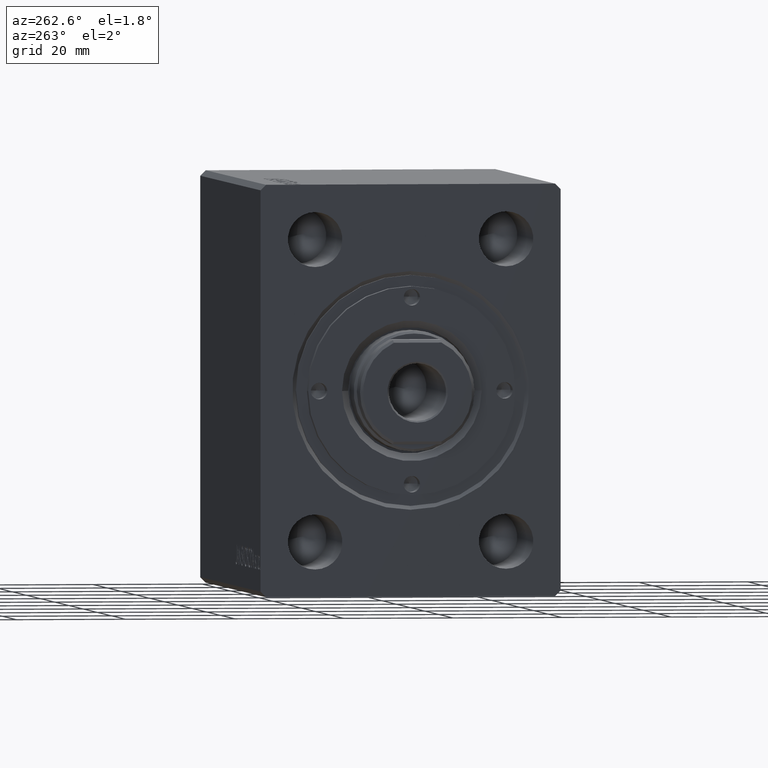
[diagram: clean part render]
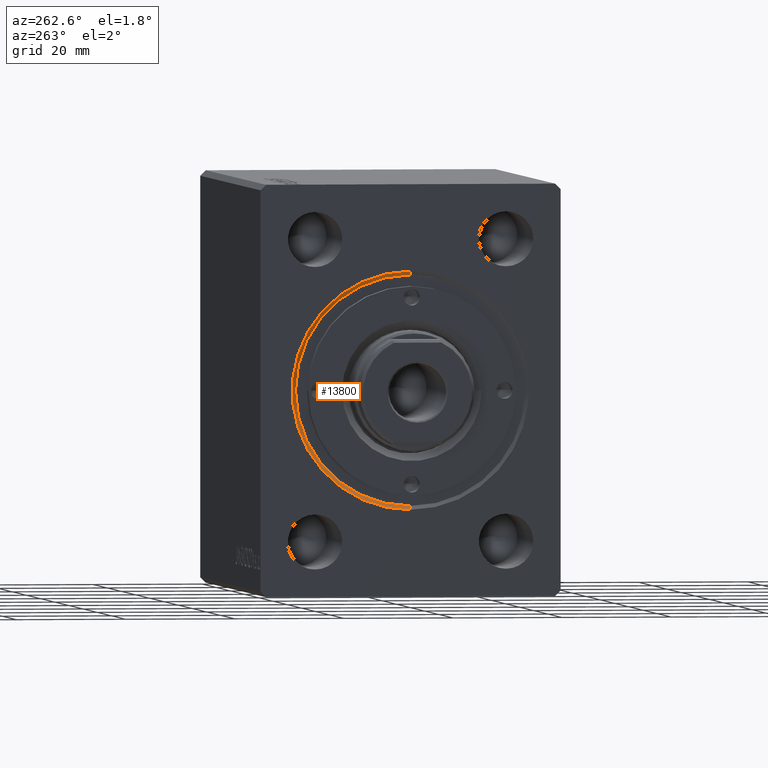
[diagram: same view with one face highlighted and labeled with its STEP entity id]
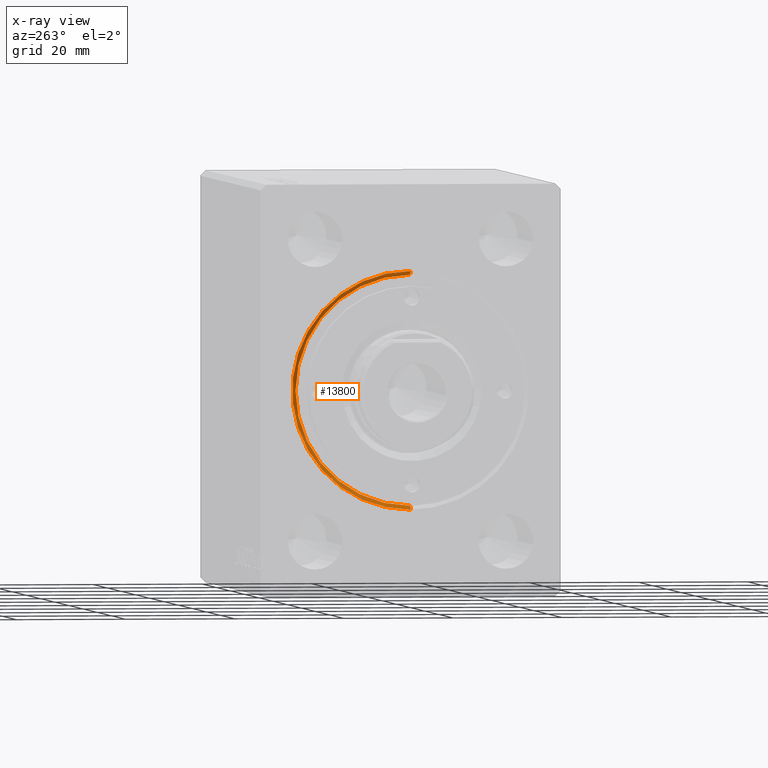
[diagram: x-ray of the same camera — body ghosted, the highlighted face saturated]
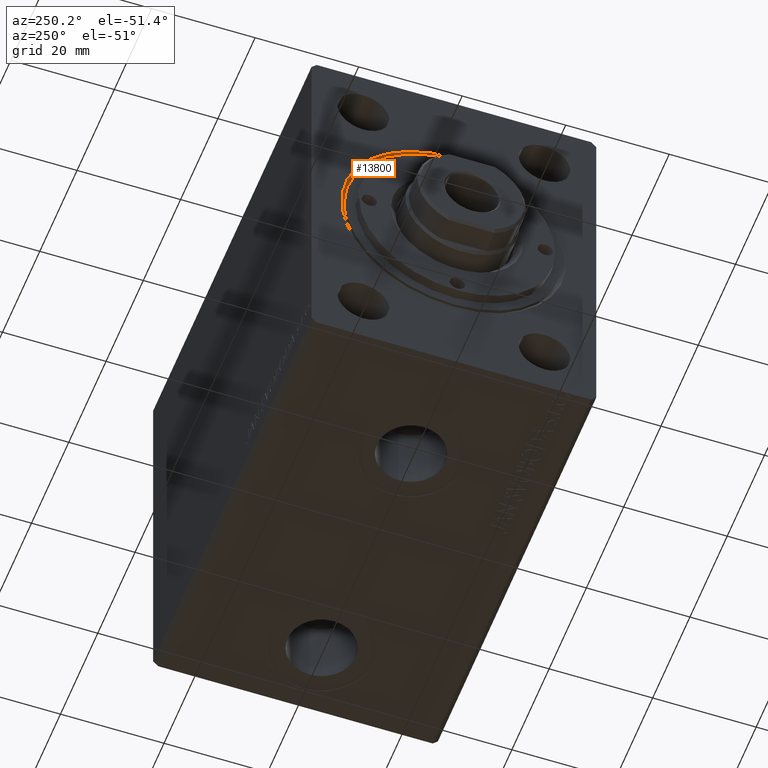
[diagram: same view with one face highlighted and labeled with its STEP entity id]
A machine part, auxiliary view. The second image highlights one B-rep face of the part: STEP entity #13800.
The next image is the same camera in x-ray: the body ghosted, the highlighted face saturated — about 0% of this face is hidden behind the body in this view.
A second angle (auxiliary view) of the same face is appended — the face is thin or edge-on in the first view.
In plain terms, the highlighted conical surface has half-angle 45 deg.
Its self-contained STEP definition (entity closure, byte-faithful):
#295 = VERTEX_POINT ( 'NONE', #17125 ) ;
#427 = ORIENTED_EDGE ( 'NONE', *, *, #30086, .F. ) ;
#2052 = FACE_OUTER_BOUND ( 'NONE', #20793, .T. ) ;
#2670 = DIRECTION ( 'NONE',  ( -0.7071067811865441310, 8.659560562354975999E-17, -0.7071067811865510144 ) ) ;
#2992 = CARTESIAN_POINT ( 'NONE',  ( 0.6999999999999888534, 0.000000000000000000, 21.00000000000000000 ) ) ;
#3009 = VERTEX_POINT ( 'NONE', #31780 ) ;
#3870 = AXIS2_PLACEMENT_3D ( 'NONE', #24451, #38091, #20230 ) ;
#5454 = EDGE_CURVE ( 'NONE', #41879, #3009, #20027, .T. ) ;
#5884 = CONICAL_SURFACE ( 'NONE', #30144, 21.00000000000000000, 0.7853981633974532750 ) ;
#9567 = CIRCLE ( 'NONE', #3870, 21.69999999999999574 ) ;
#12453 = CARTESIAN_POINT ( 'NONE',  ( 0.6999999999999888534, 2.571758278209441661E-15, -21.00000000000000000 ) ) ;
#13800 = ADVANCED_FACE ( 'NONE', ( #2052 ), #5884, .F. ) ;
#14729 = ORIENTED_EDGE ( 'NONE', *, *, #36309, .F. ) ;
#16098 = DIRECTION ( 'NONE',  ( -1.000000000000000000, 0.000000000000000000, 0.000000000000000000 ) ) ;
#17125 = CARTESIAN_POINT ( 'NONE',  ( 0.000000000000000000, 2.657483554149755949E-15, -21.69999999999999574 ) ) ;
#20027 = CIRCLE ( 'NONE', #20737, 21.00000000000000000 ) ;
#20230 = DIRECTION ( 'NONE',  ( 0.000000000000000000, 0.000000000000000000, -1.000000000000000000 ) ) ;
#20737 = AXIS2_PLACEMENT_3D ( 'NONE', #23474, #16098, #29297 ) ;
#20793 = EDGE_LOOP ( 'NONE', ( #427, #26949, #27473, #14729 ) ) ;
#22187 = CARTESIAN_POINT ( 'NONE',  ( 0.000000000000000000, 0.000000000000000000, 21.69999999999999574 ) ) ;
#23474 = CARTESIAN_POINT ( 'NONE',  ( 0.6999999999999888534, 0.000000000000000000, 0.000000000000000000 ) ) ;
#24451 = CARTESIAN_POINT ( 'NONE',  ( 0.000000000000000000, 0.000000000000000000, 0.000000000000000000 ) ) ;
#25929 = DIRECTION ( 'NONE',  ( 0.000000000000000000, 0.000000000000000000, 1.000000000000000000 ) ) ;
#26949 = ORIENTED_EDGE ( 'NONE', *, *, #5454, .F. ) ;
#27473 = ORIENTED_EDGE ( 'NONE', *, *, #28483, .T. ) ;
#28483 = EDGE_CURVE ( 'NONE', #41879, #34901, #40272, .T. ) ;
#29068 = DIRECTION ( 'NONE',  ( -1.000000000000000000, 0.000000000000000000, 0.000000000000000000 ) ) ;
#29297 = DIRECTION ( 'NONE',  ( 0.000000000000000000, 0.000000000000000000, -1.000000000000000000 ) ) ;
#30086 = EDGE_CURVE ( 'NONE', #3009, #295, #43060, .T. ) ;
#30144 = AXIS2_PLACEMENT_3D ( 'NONE', #39776, #29068, #25929 ) ;
#31780 = CARTESIAN_POINT ( 'NONE',  ( 0.6999999999999888534, 2.571758278209441661E-15, -21.00000000000000000 ) ) ;
#34010 = DIRECTION ( 'NONE',  ( -0.7071067811865441310, 0.000000000000000000, 0.7071067811865510144 ) ) ;
#34794 = VECTOR ( 'NONE', #2670, 999.9999999999998863 ) ;
#34901 = VERTEX_POINT ( 'NONE', #22187 ) ;
#36309 = EDGE_CURVE ( 'NONE', #295, #34901, #9567, .T. ) ;
#38091 = DIRECTION ( 'NONE',  ( 1.000000000000000000, 0.000000000000000000, 0.000000000000000000 ) ) ;
#39776 = CARTESIAN_POINT ( 'NONE',  ( 0.6999999999999888534, 0.000000000000000000, 0.000000000000000000 ) ) ;
#40272 = LINE ( 'NONE', #2992, #43409 ) ;
#41003 = CARTESIAN_POINT ( 'NONE',  ( 0.6999999999999888534, 0.000000000000000000, 21.00000000000000000 ) ) ;
#41879 = VERTEX_POINT ( 'NONE', #41003 ) ;
#43060 = LINE ( 'NONE', #12453, #34794 ) ;
#43409 = VECTOR ( 'NONE', #34010, 999.9999999999998863 ) ;